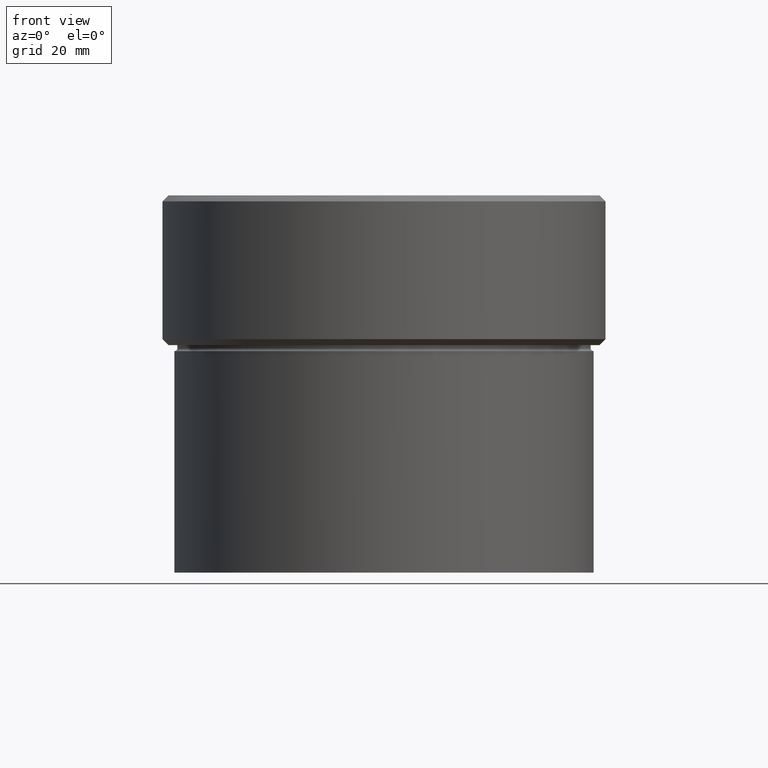
[diagram: clean part render]
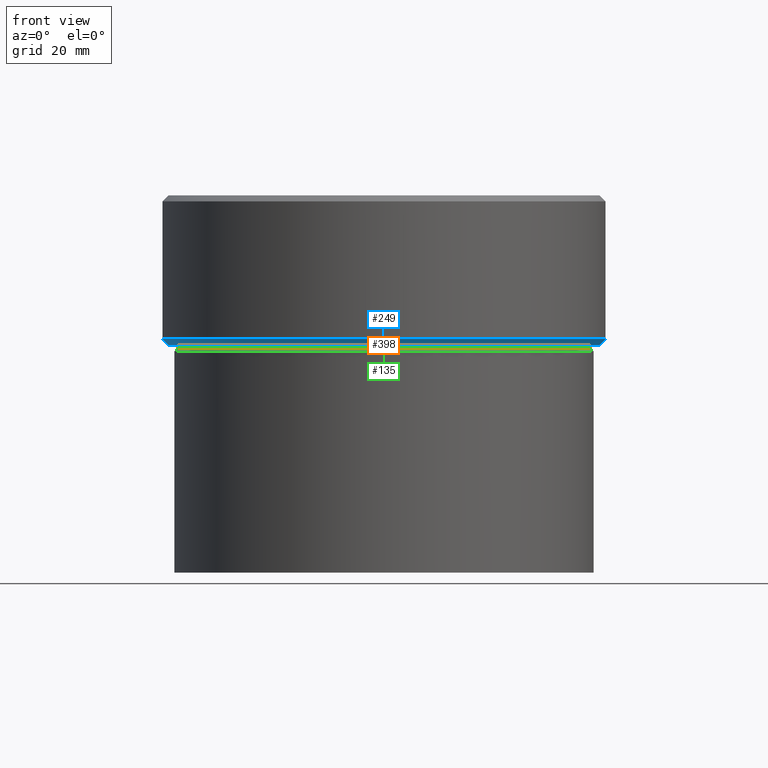
[diagram: same view with three faces highlighted in distinct colors, each labeled with its STEP entity id]
A machine part, front view with three faces highlighted in distinct colors.
Their STEP definitions:

[orange] entity #398 — the highlighted cylindrical surface (partial cylindrical patch) has radius 34.5 mm, axis along (-0, -0, 1).
#3 = FACE_OUTER_BOUND ( 'NONE', #245, .T. ) ;
#15 = DIRECTION ( 'NONE',  ( -0.000000000000000000, -0.000000000000000000, 1.000000000000000000 ) ) ;
#28 = CIRCLE ( 'NONE', #97, 34.50000000000000000 ) ;
#37 = DIRECTION ( 'NONE',  ( -0.000000000000000000, -0.000000000000000000, 1.000000000000000000 ) ) ;
#40 = CARTESIAN_POINT ( 'NONE',  ( 34.50000000000000000, 0.000000000000000000, -25.00000000000000000 ) ) ;
#65 = CIRCLE ( 'NONE', #503, 34.50000000000000000 ) ;
#85 = ORIENTED_EDGE ( 'NONE', *, *, #192, .T. ) ;
#96 = EDGE_CURVE ( 'NONE', #251, #400, #65, .T. ) ;
#97 = AXIS2_PLACEMENT_3D ( 'NONE', #151, #228, #102 ) ;
#102 = DIRECTION ( 'NONE',  ( 1.000000000000000000, 0.000000000000000000, 0.000000000000000000 ) ) ;
#126 = CARTESIAN_POINT ( 'NONE',  ( 0.000000000000000000, 0.000000000000000000, 0.000000000000000000 ) ) ;
#151 = CARTESIAN_POINT ( 'NONE',  ( 0.000000000000000000, 0.000000000000000000, -25.50000000000000000 ) ) ;
#157 = CARTESIAN_POINT ( 'NONE',  ( -34.50000000000000000, 4.225031457058368922E-15, -25.00000000000000000 ) ) ;
#192 = EDGE_CURVE ( 'NONE', #324, #365, #28, .T. ) ;
#195 = ORIENTED_EDGE ( 'NONE', *, *, #382, .F. ) ;
#198 = CARTESIAN_POINT ( 'NONE',  ( -34.50000000000000000, 4.225031457058368922E-15, -25.50000000000000000 ) ) ;
#200 = DIRECTION ( 'NONE',  ( -0.000000000000000000, -0.000000000000000000, 1.000000000000000000 ) ) ;
#205 = CARTESIAN_POINT ( 'NONE',  ( -34.50000000000000000, 4.225031457058368922E-15, 0.000000000000000000 ) ) ;
#217 = EDGE_CURVE ( 'NONE', #365, #400, #436, .T. ) ;
#228 = DIRECTION ( 'NONE',  ( -0.000000000000000000, -0.000000000000000000, 1.000000000000000000 ) ) ;
#245 = EDGE_LOOP ( 'NONE', ( #195, #85, #248, #463 ) ) ;
#247 = CARTESIAN_POINT ( 'NONE',  ( 34.50000000000000000, 0.000000000000000000, -25.50000000000000000 ) ) ;
#248 = ORIENTED_EDGE ( 'NONE', *, *, #217, .T. ) ;
#251 = VERTEX_POINT ( 'NONE', #157 ) ;
#256 = VECTOR ( 'NONE', #200, 1000.000000000000000 ) ;
#259 = CARTESIAN_POINT ( 'NONE',  ( 0.000000000000000000, 0.000000000000000000, -25.00000000000000000 ) ) ;
#266 = CARTESIAN_POINT ( 'NONE',  ( 34.50000000000000000, 0.000000000000000000, 0.000000000000000000 ) ) ;
#278 = LINE ( 'NONE', #205, #256 ) ;
#312 = DIRECTION ( 'NONE',  ( -0.000000000000000000, -0.000000000000000000, 1.000000000000000000 ) ) ;
#320 = DIRECTION ( 'NONE',  ( 1.000000000000000000, 0.000000000000000000, 0.000000000000000000 ) ) ;
#324 = VERTEX_POINT ( 'NONE', #198 ) ;
#325 = AXIS2_PLACEMENT_3D ( 'NONE', #126, #37, #320 ) ;
#365 = VERTEX_POINT ( 'NONE', #247 ) ;
#372 = CYLINDRICAL_SURFACE ( 'NONE', #325, 34.50000000000000000 ) ;
#382 = EDGE_CURVE ( 'NONE', #324, #251, #278, .T. ) ;
#398 = ADVANCED_FACE ( 'NONE', ( #3 ), #372, .T. ) ;
#400 = VERTEX_POINT ( 'NONE', #40 ) ;
#436 = LINE ( 'NONE', #266, #471 ) ;
#463 = ORIENTED_EDGE ( 'NONE', *, *, #96, .F. ) ;
#471 = VECTOR ( 'NONE', #312, 1000.000000000000000 ) ;
#473 = DIRECTION ( 'NONE',  ( 1.000000000000000000, 0.000000000000000000, 0.000000000000000000 ) ) ;
#503 = AXIS2_PLACEMENT_3D ( 'NONE', #259, #15, #473 ) ;

[blue] entity #249 — the highlighted conical surface has half-angle 45 deg.
#5 = CONICAL_SURFACE ( 'NONE', #395, 37.00000000000000000, 0.7853981633974517207 ) ;
#10 = ORIENTED_EDGE ( 'NONE', *, *, #242, .F. ) ;
#29 = DIRECTION ( 'NONE',  ( 1.000000000000000000, 0.000000000000000000, 0.000000000000000000 ) ) ;
#59 = EDGE_CURVE ( 'NONE', #83, #390, #254, .T. ) ;
#72 = AXIS2_PLACEMENT_3D ( 'NONE', #399, #104, #389 ) ;
#73 = DIRECTION ( 'NONE',  ( -0.7071067811865500152, 8.659560562354962440E-17, 0.7071067811865451302 ) ) ;
#83 = VERTEX_POINT ( 'NONE', #378 ) ;
#95 = VECTOR ( 'NONE', #207, 1000.000000000000114 ) ;
#104 = DIRECTION ( 'NONE',  ( 0.000000000000000000, 0.000000000000000000, -1.000000000000000000 ) ) ;
#106 = CARTESIAN_POINT ( 'NONE',  ( 0.000000000000000000, 0.000000000000000000, -23.99999999999997158 ) ) ;
#113 = VERTEX_POINT ( 'NONE', #177 ) ;
#117 = LINE ( 'NONE', #250, #95 ) ;
#177 = CARTESIAN_POINT ( 'NONE',  ( 35.99999999999996447, 0.000000000000000000, -25.00000000000000000 ) ) ;
#207 = DIRECTION ( 'NONE',  ( 0.7071067811865500152, 0.000000000000000000, 0.7071067811865451302 ) ) ;
#210 = EDGE_LOOP ( 'NONE', ( #10, #419, #393, #459 ) ) ;
#212 = CARTESIAN_POINT ( 'NONE',  ( -35.99999999999996447, 4.469960816887836852E-15, -25.00000000000000000 ) ) ;
#226 = AXIS2_PLACEMENT_3D ( 'NONE', #305, #513, #467 ) ;
#242 = EDGE_CURVE ( 'NONE', #502, #83, #273, .T. ) ;
#244 = CARTESIAN_POINT ( 'NONE',  ( 37.00000000000000000, 0.000000000000000000, -23.99999999999997158 ) ) ;
#249 = ADVANCED_FACE ( 'NONE', ( #276 ), #5, .T. ) ;
#250 = CARTESIAN_POINT ( 'NONE',  ( 37.00000000000000000, 0.000000000000000000, -23.99999999999997158 ) ) ;
#254 = CIRCLE ( 'NONE', #226, 37.00000000000000000 ) ;
#264 = EDGE_CURVE ( 'NONE', #113, #502, #290, .T. ) ;
#273 = LINE ( 'NONE', #441, #472 ) ;
#276 = FACE_OUTER_BOUND ( 'NONE', #210, .T. ) ;
#290 = CIRCLE ( 'NONE', #72, 35.99999999999996447 ) ;
#305 = CARTESIAN_POINT ( 'NONE',  ( 0.000000000000000000, 0.000000000000000000, -23.99999999999997158 ) ) ;
#378 = CARTESIAN_POINT ( 'NONE',  ( -37.00000000000000000, 4.531193156845206793E-15, -23.99999999999997158 ) ) ;
#389 = DIRECTION ( 'NONE',  ( -1.000000000000000000, 0.000000000000000000, 0.000000000000000000 ) ) ;
#390 = VERTEX_POINT ( 'NONE', #244 ) ;
#393 = ORIENTED_EDGE ( 'NONE', *, *, #468, .T. ) ;
#395 = AXIS2_PLACEMENT_3D ( 'NONE', #106, #401, #29 ) ;
#399 = CARTESIAN_POINT ( 'NONE',  ( 0.000000000000000000, 0.000000000000000000, -25.00000000000000000 ) ) ;
#401 = DIRECTION ( 'NONE',  ( -0.000000000000000000, -0.000000000000000000, 1.000000000000000000 ) ) ;
#419 = ORIENTED_EDGE ( 'NONE', *, *, #264, .F. ) ;
#441 = CARTESIAN_POINT ( 'NONE',  ( -37.00000000000000000, 4.531193156845206793E-15, -23.99999999999997158 ) ) ;
#459 = ORIENTED_EDGE ( 'NONE', *, *, #59, .F. ) ;
#467 = DIRECTION ( 'NONE',  ( -1.000000000000000000, 0.000000000000000000, 0.000000000000000000 ) ) ;
#468 = EDGE_CURVE ( 'NONE', #113, #390, #117, .T. ) ;
#472 = VECTOR ( 'NONE', #73, 1000.000000000000114 ) ;
#502 = VERTEX_POINT ( 'NONE', #212 ) ;
#513 = DIRECTION ( 'NONE',  ( -0.000000000000000000, -0.000000000000000000, 1.000000000000000000 ) ) ;

[green] entity #135 — the highlighted toroidal blend (fillet) surface has major radius 35 mm and minor (blend) radius 0.5 mm.
#28 = CIRCLE ( 'NONE', #97, 34.50000000000000000 ) ;
#43 = DIRECTION ( 'NONE',  ( 0.000000000000000000, 0.000000000000000000, -1.000000000000000000 ) ) ;
#97 = AXIS2_PLACEMENT_3D ( 'NONE', #151, #228, #102 ) ;
#101 = DIRECTION ( 'NONE',  ( 1.000000000000000000, 0.000000000000000000, 0.000000000000000000 ) ) ;
#102 = DIRECTION ( 'NONE',  ( 1.000000000000000000, 0.000000000000000000, 0.000000000000000000 ) ) ;
#115 = CARTESIAN_POINT ( 'NONE',  ( 35.00000000000000000, 0.000000000000000000, -25.50000000000000000 ) ) ;
#122 = CIRCLE ( 'NONE', #234, 0.5000000000000004441 ) ;
#124 = DIRECTION ( 'NONE',  ( -1.000000000000000000, 1.224646799147349509E-16, 0.000000000000000000 ) ) ;
#135 = ADVANCED_FACE ( 'NONE', ( #179 ), #326, .F. ) ;
#151 = CARTESIAN_POINT ( 'NONE',  ( 0.000000000000000000, 0.000000000000000000, -25.50000000000000000 ) ) ;
#159 = ORIENTED_EDGE ( 'NONE', *, *, #514, .T. ) ;
#166 = CIRCLE ( 'NONE', #236, 0.5000000000000004441 ) ;
#179 = FACE_OUTER_BOUND ( 'NONE', #230, .T. ) ;
#192 = EDGE_CURVE ( 'NONE', #324, #365, #28, .T. ) ;
#197 = VERTEX_POINT ( 'NONE', #348 ) ;
#198 = CARTESIAN_POINT ( 'NONE',  ( -34.50000000000000000, 4.225031457058368922E-15, -25.50000000000000000 ) ) ;
#211 = AXIS2_PLACEMENT_3D ( 'NONE', #487, #214, #101 ) ;
#214 = DIRECTION ( 'NONE',  ( -0.000000000000000000, -0.000000000000000000, 1.000000000000000000 ) ) ;
#228 = DIRECTION ( 'NONE',  ( -0.000000000000000000, -0.000000000000000000, 1.000000000000000000 ) ) ;
#230 = EDGE_LOOP ( 'NONE', ( #524, #333, #159, #271 ) ) ;
#233 = VERTEX_POINT ( 'NONE', #239 ) ;
#234 = AXIS2_PLACEMENT_3D ( 'NONE', #115, #282, #43 ) ;
#236 = AXIS2_PLACEMENT_3D ( 'NONE', #455, #496, #124 ) ;
#239 = CARTESIAN_POINT ( 'NONE',  ( 35.00000000000000000, 0.000000000000000000, -26.00000000000000000 ) ) ;
#247 = CARTESIAN_POINT ( 'NONE',  ( 34.50000000000000000, 0.000000000000000000, -25.50000000000000000 ) ) ;
#265 = DIRECTION ( 'NONE',  ( 1.000000000000000000, 0.000000000000000000, 0.000000000000000000 ) ) ;
#271 = ORIENTED_EDGE ( 'NONE', *, *, #376, .F. ) ;
#282 = DIRECTION ( 'NONE',  ( 0.000000000000000000, -1.000000000000000000, 0.000000000000000000 ) ) ;
#308 = AXIS2_PLACEMENT_3D ( 'NONE', #430, #337, #265 ) ;
#324 = VERTEX_POINT ( 'NONE', #198 ) ;
#326 = TOROIDAL_SURFACE ( 'NONE', #308, 35.00000000000000000, 0.5000000000000000000 ) ;
#333 = ORIENTED_EDGE ( 'NONE', *, *, #417, .T. ) ;
#337 = DIRECTION ( 'NONE',  ( -0.000000000000000000, -0.000000000000000000, 1.000000000000000000 ) ) ;
#348 = CARTESIAN_POINT ( 'NONE',  ( -35.00000000000000000, 4.286263797015736496E-15, -26.00000000000000000 ) ) ;
#365 = VERTEX_POINT ( 'NONE', #247 ) ;
#376 = EDGE_CURVE ( 'NONE', #365, #233, #122, .T. ) ;
#417 = EDGE_CURVE ( 'NONE', #324, #197, #166, .T. ) ;
#430 = CARTESIAN_POINT ( 'NONE',  ( 0.000000000000000000, 0.000000000000000000, -25.50000000000000000 ) ) ;
#446 = CIRCLE ( 'NONE', #211, 35.00000000000000000 ) ;
#455 = CARTESIAN_POINT ( 'NONE',  ( -35.00000000000000000, 4.286263797015736496E-15, -25.50000000000000000 ) ) ;
#487 = CARTESIAN_POINT ( 'NONE',  ( 0.000000000000000000, 0.000000000000000000, -26.00000000000000000 ) ) ;
#496 = DIRECTION ( 'NONE',  ( 1.224646799147353207E-16, 1.000000000000000000, 0.000000000000000000 ) ) ;
#514 = EDGE_CURVE ( 'NONE', #197, #233, #446, .T. ) ;
#524 = ORIENTED_EDGE ( 'NONE', *, *, #192, .F. ) ;